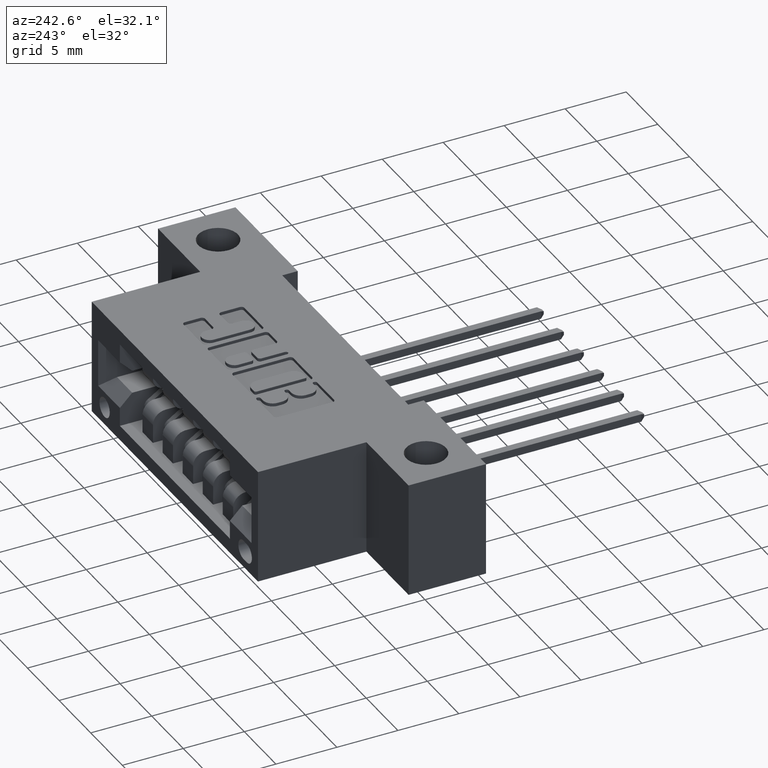
[diagram: clean part render]
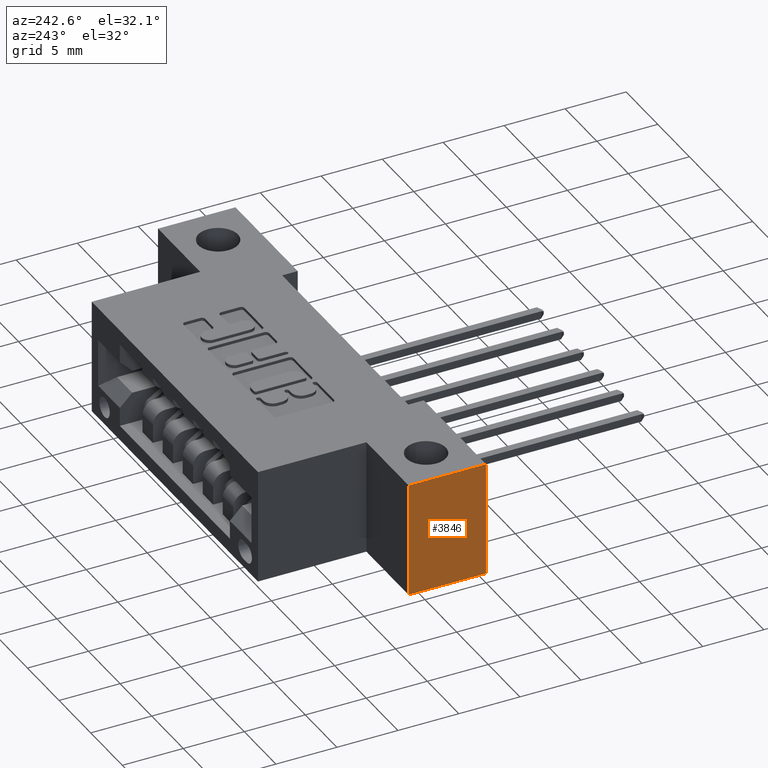
[diagram: same view with one face highlighted and labeled with its STEP entity id]
A machine part, auxiliary view. The second image highlights one B-rep face of the part: STEP entity #3846.
In plain terms, the highlighted planar face has unit normal (1, 0, 0).
Its self-contained STEP definition (entity closure, byte-faithful):
#807 = CARTESIAN_POINT ( 'NONE',  ( 0.0000000000000000000, 0.2500000000000000000, -0.3700000000000001621 ) ) ;
#865 = ORIENTED_EDGE ( 'NONE', *, *, #6993, .F. ) ;
#1403 = AXIS2_PLACEMENT_3D ( 'NONE', #8329, #6529, #4992 ) ;
#2222 = VERTEX_POINT ( 'NONE', #4319 ) ;
#2646 = CARTESIAN_POINT ( 'NONE',  ( 0.0000000000000000000, 0.5999999999999999778, 0.0000000000000000000 ) ) ;
#3171 = VECTOR ( 'NONE', #6563, 39.37007874015748143 ) ;
#3205 = LINE ( 'NONE', #2646, #3725 ) ;
#3484 = VECTOR ( 'NONE', #3540, 39.37007874015748143 ) ;
#3540 = DIRECTION ( 'NONE',  ( -0.0000000000000000000, -1.000000000000000000, -0.0000000000000000000 ) ) ;
#3725 = VECTOR ( 'NONE', #7086, 39.37007874015748143 ) ;
#3846 = ADVANCED_FACE ( 'NONE', ( #5179 ), #7819, .F. ) ;
#4196 = VERTEX_POINT ( 'NONE', #7447 ) ;
#4229 = ORIENTED_EDGE ( 'NONE', *, *, #5617, .T. ) ;
#4319 = CARTESIAN_POINT ( 'NONE',  ( 0.0000000000000000000, 0.2500000000000000000, 0.0000000000000000000 ) ) ;
#4506 = CARTESIAN_POINT ( 'NONE',  ( 0.0000000000000000000, 0.5999999999999999778, -0.3700000000000001621 ) ) ;
#4579 = EDGE_LOOP ( 'NONE', ( #865, #6207, #4229, #5723 ) ) ;
#4992 = DIRECTION ( 'NONE',  ( 0.0000000000000000000, 0.0000000000000000000, -1.000000000000000000 ) ) ;
#5179 = FACE_OUTER_BOUND ( 'NONE', #4579, .T. ) ;
#5617 = EDGE_CURVE ( 'NONE', #8021, #4196, #7771, .T. ) ;
#5723 = ORIENTED_EDGE ( 'NONE', *, *, #7844, .T. ) ;
#5971 = CARTESIAN_POINT ( 'NONE',  ( 0.0000000000000000000, 0.0000000000000000000, 0.0000000000000000000 ) ) ;
#6207 = ORIENTED_EDGE ( 'NONE', *, *, #7051, .F. ) ;
#6436 = CARTESIAN_POINT ( 'NONE',  ( 0.0000000000000000000, 0.2500000000000000000, 0.0000000000000000000 ) ) ;
#6529 = DIRECTION ( 'NONE',  ( 1.000000000000000000, -0.0000000000000000000, 0.0000000000000000000 ) ) ;
#6563 = DIRECTION ( 'NONE',  ( -0.0000000000000000000, -0.0000000000000000000, 1.000000000000000000 ) ) ;
#6575 = LINE ( 'NONE', #5971, #7374 ) ;
#6642 = CARTESIAN_POINT ( 'NONE',  ( 0.0000000000000000000, 0.0000000000000000000, 0.0000000000000000000 ) ) ;
#6993 = EDGE_CURVE ( 'NONE', #2222, #7542, #3205, .T. ) ;
#7051 = EDGE_CURVE ( 'NONE', #8021, #2222, #7123, .T. ) ;
#7086 = DIRECTION ( 'NONE',  ( -0.0000000000000000000, -1.000000000000000000, -0.0000000000000000000 ) ) ;
#7123 = LINE ( 'NONE', #6436, #3171 ) ;
#7374 = VECTOR ( 'NONE', #8605, 39.37007874015748143 ) ;
#7447 = CARTESIAN_POINT ( 'NONE',  ( 0.0000000000000000000, 0.0000000000000000000, -0.3700000000000001621 ) ) ;
#7542 = VERTEX_POINT ( 'NONE', #6642 ) ;
#7771 = LINE ( 'NONE', #4506, #3484 ) ;
#7819 = PLANE ( 'NONE',  #1403 ) ;
#7844 = EDGE_CURVE ( 'NONE', #4196, #7542, #6575, .T. ) ;
#8021 = VERTEX_POINT ( 'NONE', #807 ) ;
#8329 = CARTESIAN_POINT ( 'NONE',  ( 0.0000000000000000000, 0.5999999999999999778, 0.0000000000000000000 ) ) ;
#8605 = DIRECTION ( 'NONE',  ( -0.0000000000000000000, -0.0000000000000000000, 1.000000000000000000 ) ) ;